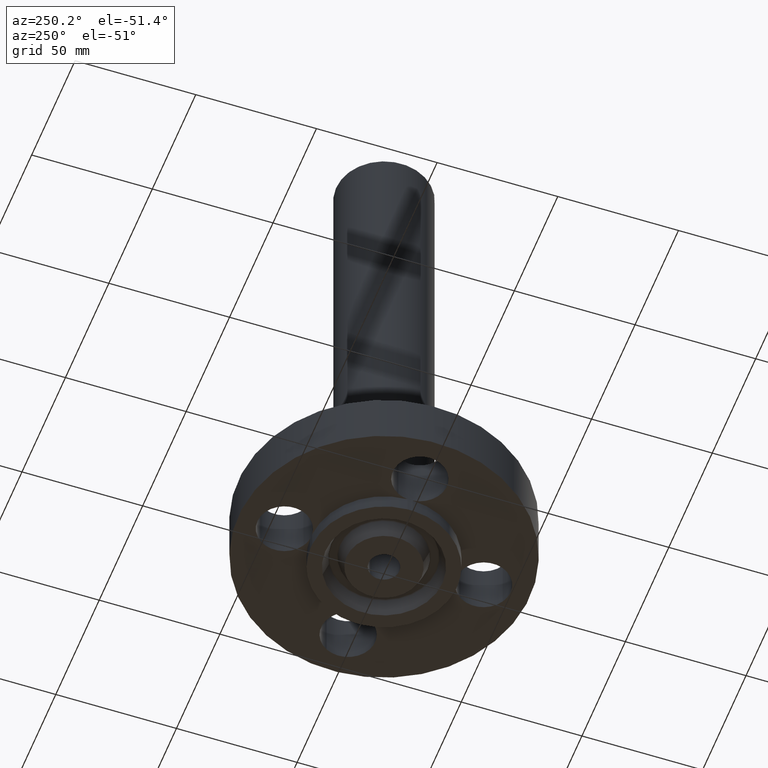
[diagram: clean part render]
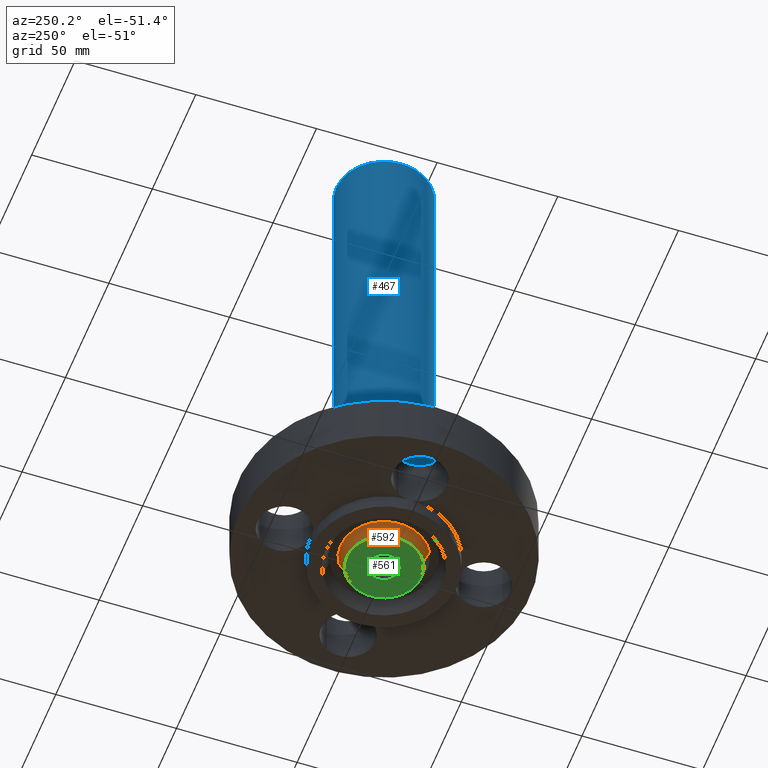
[diagram: same view with three faces highlighted in distinct colors, each labeled with its STEP entity id]
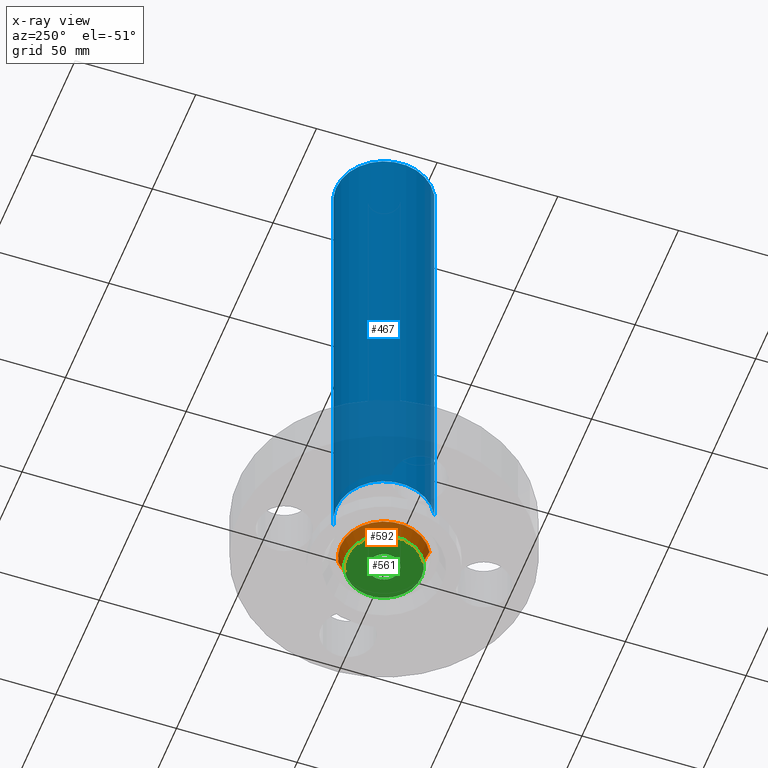
[diagram: x-ray of the same camera — body ghosted, the three highlighted faces saturated]
A machine part, auxiliary view with three faces highlighted in distinct colors.
The next image is the same camera in x-ray (body ghosted, the three faces saturated) — at least one of them is partly hidden behind the body in this view.
Their STEP definitions:

[orange] entity #592 — the highlighted conical surface has half-angle 23 deg.
#541=AXIS2_PLACEMENT_3D('Circle Axis2P3D',#539,#540,$) ;
#565=AXIS2_PLACEMENT_3D('Cone Axis2P3D',#562,#563,#564) ;
#576=AXIS2_PLACEMENT_3D('Circle Axis2P3D',#574,#575,$) ;
#539=CARTESIAN_POINT('Axis2P3D Location',(0.,0.,-0.250000000001)) ;
#543=CARTESIAN_POINT('Vertex',(-0.29220986578,-0.534886571474,-0.250000000001)) ;
#545=CARTESIAN_POINT('Vertex',(0.29220986578,0.534886571474,-0.250000000001)) ;
#562=CARTESIAN_POINT('Axis2P3D Location',(0.,0.,-0.250000000001)) ;
#567=CARTESIAN_POINT('Line Origine',(-0.315726049455,-0.577932656952,-0.134443667509)) ;
#571=CARTESIAN_POINT('Vertex',(-0.339242233129,-0.620978742429,-0.0188873350169)) ;
#574=CARTESIAN_POINT('Axis2P3D Location',(0.,0.,-0.0188873350169)) ;
#578=CARTESIAN_POINT('Vertex',(0.339242233129,0.620978742429,-0.0188873350169)) ;
#581=CARTESIAN_POINT('Line Origine',(0.315726049455,0.577932656952,-0.134443667509)) ;
#540=DIRECTION('Axis2P3D Direction',(0.,0.,-0.0393700787402)) ;
#563=DIRECTION('Axis2P3D Direction',(-0.,-0.,0.0393700787402)) ;
#564=DIRECTION('Axis2P3D XDirection',(-0.0188750212049,-0.0345504945626,0.)) ;
#568=DIRECTION('Vector Direction',(-0.00737505833565,-0.0134999537303,0.0362403485611)) ;
#575=DIRECTION('Axis2P3D Direction',(-0.,0.,0.0393700787402)) ;
#582=DIRECTION('Vector Direction',(0.00737505833565,0.0134999537303,0.0362403485611)) ;
#569=VECTOR('Line Direction',#568,0.0393700787402) ;
#583=VECTOR('Line Direction',#582,0.0393700787402) ;
#587=ORIENTED_EDGE('',*,*,#547,.F.) ;
#588=ORIENTED_EDGE('',*,*,#573,.T.) ;
#589=ORIENTED_EDGE('',*,*,#580,.T.) ;
#590=ORIENTED_EDGE('',*,*,#585,.F.) ;
#592=ADVANCED_FACE('PartBody',(#591),#566,.T.) ;
#542=CIRCLE('generated circle',#541,0.609500000002) ;
#577=CIRCLE('generated circle',#576,0.707601505995) ;
#566=CONICAL_SURFACE('Cone',#565,0.609500000002,0.401425727959) ;
#547=EDGE_CURVE('',#544,#546,#542,.T.) ;
#573=EDGE_CURVE('',#544,#572,#570,.T.) ;
#580=EDGE_CURVE('',#572,#579,#577,.F.) ;
#585=EDGE_CURVE('',#546,#579,#584,.T.) ;
#586=EDGE_LOOP('',(#587,#588,#589,#590)) ;
#591=FACE_OUTER_BOUND('',#586,.T.) ;
#570=LINE('Line',#567,#569) ;
#584=LINE('Line',#581,#583) ;
#544=VERTEX_POINT('',#543) ;
#546=VERTEX_POINT('',#545) ;
#572=VERTEX_POINT('',#571) ;
#579=VERTEX_POINT('',#578) ;

[blue] entity #467 — the highlighted cylindrical surface (partial cylindrical patch) has radius 19.812 mm, axis along (0, 0, -1).
#414=AXIS2_PLACEMENT_3D('Cylinder Axis2P3D',#411,#412,#413) ;
#453=AXIS2_PLACEMENT_3D('Circle Axis2P3D',#451,#452,$) ;
#458=AXIS2_PLACEMENT_3D('Circle Axis2P3D',#456,#457,$) ;
#411=CARTESIAN_POINT('Axis2P3D Location',(0.,0.,4.25000000002)) ;
#420=CARTESIAN_POINT('Vertex',(0.373951920113,0.684514398277,0.880000000004)) ;
#422=CARTESIAN_POINT('Vertex',(-0.373951920113,-0.684514398277,0.880000000004)) ;
#425=CARTESIAN_POINT('Line Origine',(0.373951920113,0.684514398277,4.81500000002)) ;
#429=CARTESIAN_POINT('Vertex',(0.373951920113,0.684514398277,8.75000000003)) ;
#436=CARTESIAN_POINT('Vertex',(-0.373951920113,-0.684514398277,8.75000000003)) ;
#439=CARTESIAN_POINT('Line Origine',(-0.373951920113,-0.684514398277,4.81500000002)) ;
#451=CARTESIAN_POINT('Axis2P3D Location',(0.,0.,0.880000000004)) ;
#456=CARTESIAN_POINT('Axis2P3D Location',(0.,0.,8.75000000004)) ;
#412=DIRECTION('Axis2P3D Direction',(0.,0.,-0.0393700787402)) ;
#413=DIRECTION('Axis2P3D XDirection',(-0.0188750212049,-0.0345504945626,0.)) ;
#426=DIRECTION('Vector Direction',(0.,0.,-0.0393700787402)) ;
#440=DIRECTION('Vector Direction',(0.,0.,-0.0393700787402)) ;
#452=DIRECTION('Axis2P3D Direction',(0.,0.,-0.0393700787402)) ;
#457=DIRECTION('Axis2P3D Direction',(0.,0.,-0.0393700787402)) ;
#427=VECTOR('Line Direction',#426,0.0393700787402) ;
#441=VECTOR('Line Direction',#440,0.0393700787402) ;
#462=ORIENTED_EDGE('',*,*,#455,.F.) ;
#463=ORIENTED_EDGE('',*,*,#443,.T.) ;
#464=ORIENTED_EDGE('',*,*,#460,.T.) ;
#465=ORIENTED_EDGE('',*,*,#431,.F.) ;
#467=ADVANCED_FACE('PartBody',(#466),#415,.T.) ;
#454=CIRCLE('generated circle',#453,0.780000000003) ;
#459=CIRCLE('generated circle',#458,0.780000000003) ;
#415=CYLINDRICAL_SURFACE('generated cylinder',#414,0.780000000003) ;
#431=EDGE_CURVE('',#421,#430,#428,.F.) ;
#443=EDGE_CURVE('',#423,#437,#442,.F.) ;
#455=EDGE_CURVE('',#423,#421,#454,.T.) ;
#460=EDGE_CURVE('',#437,#430,#459,.T.) ;
#461=EDGE_LOOP('',(#462,#463,#464,#465)) ;
#466=FACE_OUTER_BOUND('',#461,.T.) ;
#428=LINE('Line',#425,#427) ;
#442=LINE('Line',#439,#441) ;
#421=VERTEX_POINT('',#420) ;
#423=VERTEX_POINT('',#422) ;
#430=VERTEX_POINT('',#429) ;
#437=VERTEX_POINT('',#436) ;

[green] entity #561 — the highlighted planar face has unit normal (0, 0, -1).
#317=AXIS2_PLACEMENT_3D('Plane Axis2P3D',#314,#315,#316) ;
#510=AXIS2_PLACEMENT_3D('Circle Axis2P3D',#508,#509,$) ;
#529=AXIS2_PLACEMENT_3D('Circle Axis2P3D',#527,#528,$) ;
#541=AXIS2_PLACEMENT_3D('Circle Axis2P3D',#539,#540,$) ;
#550=AXIS2_PLACEMENT_3D('Circle Axis2P3D',#548,#549,$) ;
#314=CARTESIAN_POINT('Axis2P3D Location',(0.,0.250000000001,-0.250000000001)) ;
#505=CARTESIAN_POINT('Vertex',(0.119856384652,0.219395640473,-0.250000000001)) ;
#508=CARTESIAN_POINT('Axis2P3D Location',(0.,0.,-0.250000000001)) ;
#512=CARTESIAN_POINT('Vertex',(-0.119856384652,-0.219395640473,-0.250000000001)) ;
#527=CARTESIAN_POINT('Axis2P3D Location',(0.,0.,-0.250000000001)) ;
#539=CARTESIAN_POINT('Axis2P3D Location',(0.,0.,-0.250000000001)) ;
#543=CARTESIAN_POINT('Vertex',(-0.29220986578,-0.534886571474,-0.250000000001)) ;
#545=CARTESIAN_POINT('Vertex',(0.29220986578,0.534886571474,-0.250000000001)) ;
#548=CARTESIAN_POINT('Axis2P3D Location',(0.,0.,-0.250000000001)) ;
#315=DIRECTION('Axis2P3D Direction',(0.,0.,-0.0393700787402)) ;
#316=DIRECTION('Axis2P3D XDirection',(0.0393700787402,0.,0.)) ;
#509=DIRECTION('Axis2P3D Direction',(0.,0.,-0.0393700787402)) ;
#528=DIRECTION('Axis2P3D Direction',(0.,0.,-0.0393700787402)) ;
#540=DIRECTION('Axis2P3D Direction',(0.,0.,-0.0393700787402)) ;
#549=DIRECTION('Axis2P3D Direction',(0.,0.,-0.0393700787402)) ;
#554=ORIENTED_EDGE('',*,*,#547,.T.) ;
#555=ORIENTED_EDGE('',*,*,#552,.T.) ;
#558=ORIENTED_EDGE('',*,*,#514,.F.) ;
#559=ORIENTED_EDGE('',*,*,#531,.F.) ;
#560=FACE_BOUND('',#557,.T.) ;
#561=ADVANCED_FACE('PartBody',(#556,#560),#318,.T.) ;
#511=CIRCLE('generated circle',#510,0.250000000001) ;
#530=CIRCLE('generated circle',#529,0.250000000001) ;
#542=CIRCLE('generated circle',#541,0.609500000002) ;
#551=CIRCLE('generated circle',#550,0.609500000002) ;
#514=EDGE_CURVE('',#506,#513,#511,.T.) ;
#531=EDGE_CURVE('',#513,#506,#530,.T.) ;
#547=EDGE_CURVE('',#544,#546,#542,.T.) ;
#552=EDGE_CURVE('',#546,#544,#551,.T.) ;
#553=EDGE_LOOP('',(#554,#555)) ;
#557=EDGE_LOOP('',(#558,#559)) ;
#556=FACE_OUTER_BOUND('',#553,.T.) ;
#318=PLANE('',#317) ;
#506=VERTEX_POINT('',#505) ;
#513=VERTEX_POINT('',#512) ;
#544=VERTEX_POINT('',#543) ;
#546=VERTEX_POINT('',#545) ;